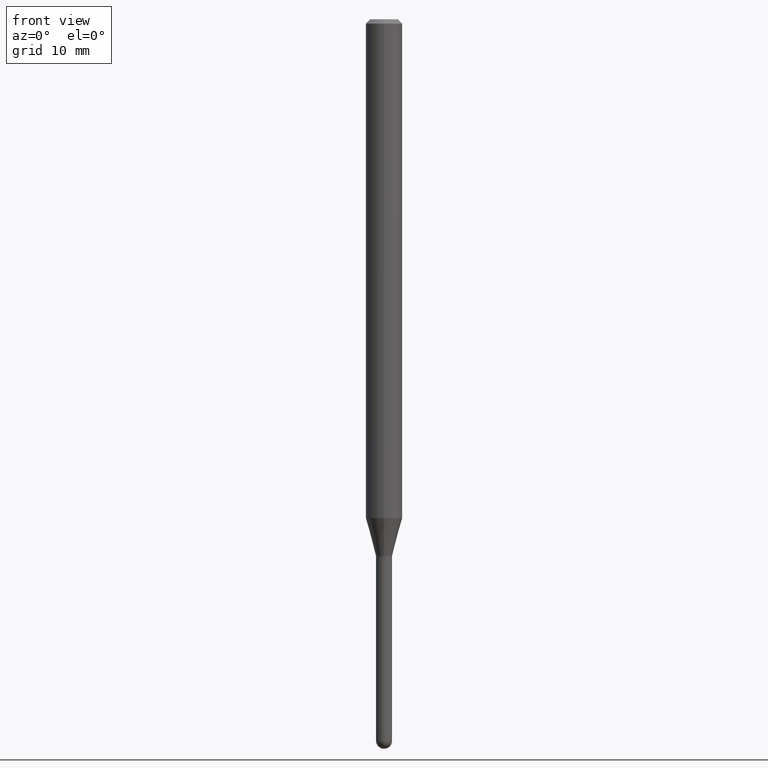
[diagram: clean part render]
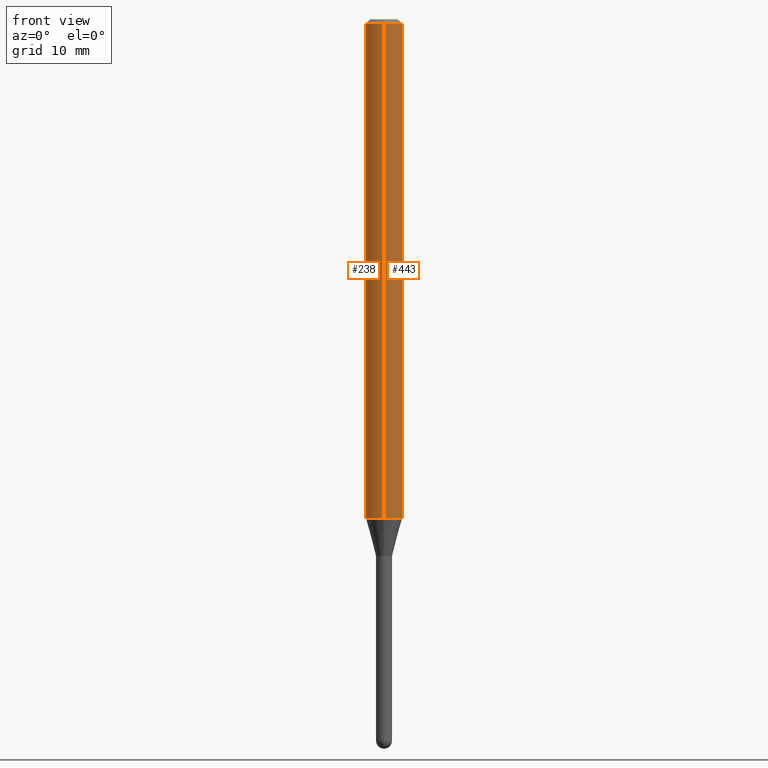
[diagram: same view with one multi-face feature highlighted, each face labeled with its STEP entity id]
A machine part, front view. The highlighted faces form ONE feature: a constant-radius fillet chain: 2 tangent blend faces with common blend radius 1.5875 mm. The faces share edges in the B-rep.
Their STEP definitions:
[1] entity #443 (Cylinder):
#8 = CARTESIAN_POINT ( 'NONE',  ( 4.440892098500625669E-16, 0.06250000000000000000, -2.182180900502340932E-16 ) ) ;
#22 = EDGE_CURVE ( 'NONE', #380, #76, #299, .T. ) ;
#23 = DIRECTION ( 'NONE',  ( -6.982962677686265922E-15, -1.000000000000000000, 3.491489440803745492E-15 ) ) ;
#41 = DIRECTION ( 'NONE',  ( -2.445463148616288200E-29, 3.491489440803745492E-15, 1.000000000000000000 ) ) ;
#50 = VERTEX_POINT ( 'NONE', #301 ) ;
#58 = ORIENTED_EDGE ( 'NONE', *, *, #197, .T. ) ;
#59 = DIRECTION ( 'NONE',  ( -2.445463148616288200E-29, 3.491489440803745492E-15, 1.000000000000000000 ) ) ;
#76 = VERTEX_POINT ( 'NONE', #191 ) ;
#90 = CARTESIAN_POINT ( 'NONE',  ( -4.364351673553912750E-16, -0.06250000000000005551, -0.01499999999999984852 ) ) ;
#96 = CARTESIAN_POINT ( 'NONE',  ( 0.000000000000000000, 0.000000000000000000, 0.000000000000000000 ) ) ;
#109 = ORIENTED_EDGE ( 'NONE', *, *, #259, .T. ) ;
#119 = EDGE_LOOP ( 'NONE', ( #109, #58, #337, #261 ) ) ;
#121 = DIRECTION ( 'NONE',  ( -2.445463148616287919E-29, 3.491489440803745492E-15, 1.000000000000000000 ) ) ;
#124 = AXIS2_PLACEMENT_3D ( 'NONE', #96, #59, #23 ) ;
#137 = AXIS2_PLACEMENT_3D ( 'NONE', #233, #263, #391 ) ;
#161 = DIRECTION ( 'NONE',  ( -2.445463148616287919E-29, 3.491489440803745492E-15, 1.000000000000000000 ) ) ;
#189 = CARTESIAN_POINT ( 'NONE',  ( -4.364351673553500570E-16, -0.06250000000000599520, -1.709378221735093017 ) ) ;
#191 = CARTESIAN_POINT ( 'NONE',  ( 4.440892098501046230E-16, 0.06249999999999995143, -0.01500000000000028394 ) ) ;
#197 = EDGE_CURVE ( 'NONE', #50, #76, #359, .T. ) ;
#207 = CARTESIAN_POINT ( 'NONE',  ( -4.364351673553916201E-16, -0.06250000000000000000, 2.182180900502340932E-16 ) ) ;
#217 = CYLINDRICAL_SURFACE ( 'NONE', #124, 0.06250000000000000000 ) ;
#233 = CARTESIAN_POINT ( 'NONE',  ( 3.668194722924448467E-31, -5.237234161205640695E-17, -0.01500000000000006710 ) ) ;
#246 = CARTESIAN_POINT ( 'NONE',  ( 4.180221448300412991E-29, -5.968276011527961205E-15, -1.709378221735093462 ) ) ;
#248 = EDGE_CURVE ( 'NONE', #482, #380, #441, .T. ) ;
#259 = EDGE_CURVE ( 'NONE', #482, #50, #404, .T. ) ;
#261 = ORIENTED_EDGE ( 'NONE', *, *, #248, .F. ) ;
#263 = DIRECTION ( 'NONE',  ( -2.445463148616288200E-29, 3.491489440803745492E-15, 1.000000000000000000 ) ) ;
#297 = FACE_OUTER_BOUND ( 'NONE', #119, .T. ) ;
#299 = CIRCLE ( 'NONE', #137, 0.06250000000000000000 ) ;
#301 = CARTESIAN_POINT ( 'NONE',  ( 4.440892098501041300E-16, 0.06249999999999401173, -1.709378221735093684 ) ) ;
#305 = AXIS2_PLACEMENT_3D ( 'NONE', #246, #41, #361 ) ;
#337 = ORIENTED_EDGE ( 'NONE', *, *, #22, .F. ) ;
#351 = VECTOR ( 'NONE', #161, 39.37007874015748143 ) ;
#359 = LINE ( 'NONE', #8, #351 ) ;
#361 = DIRECTION ( 'NONE',  ( -6.982962677686265922E-15, -1.000000000000000000, 4.370956789862821150E-15 ) ) ;
#380 = VERTEX_POINT ( 'NONE', #90 ) ;
#391 = DIRECTION ( 'NONE',  ( -6.982962677686265922E-15, -1.000000000000000000, 3.483106191921935554E-15 ) ) ;
#404 = CIRCLE ( 'NONE', #305, 0.06250000000000000000 ) ;
#441 = LINE ( 'NONE', #207, #477 ) ;
#443 = ADVANCED_FACE ( 'NONE', ( #297 ), #217, .T. ) ;
#477 = VECTOR ( 'NONE', #121, 39.37007874015748143 ) ;
#482 = VERTEX_POINT ( 'NONE', #189 ) ;
[2] entity #238 (Cylinder):
#8 = CARTESIAN_POINT ( 'NONE',  ( 4.440892098500625669E-16, 0.06250000000000000000, -2.182180900502340932E-16 ) ) ;
#15 = ORIENTED_EDGE ( 'NONE', *, *, #248, .T. ) ;
#35 = FACE_OUTER_BOUND ( 'NONE', #86, .T. ) ;
#49 = DIRECTION ( 'NONE',  ( -6.982962677686265922E-15, -1.000000000000000000, 4.370956789862821150E-15 ) ) ;
#50 = VERTEX_POINT ( 'NONE', #301 ) ;
#53 = CIRCLE ( 'NONE', #461, 0.06250000000000000000 ) ;
#76 = VERTEX_POINT ( 'NONE', #191 ) ;
#78 = ORIENTED_EDGE ( 'NONE', *, *, #197, .F. ) ;
#86 = EDGE_LOOP ( 'NONE', ( #78, #377, #15, #88 ) ) ;
#88 = ORIENTED_EDGE ( 'NONE', *, *, #436, .F. ) ;
#90 = CARTESIAN_POINT ( 'NONE',  ( -4.364351673553912750E-16, -0.06250000000000005551, -0.01499999999999984852 ) ) ;
#102 = AXIS2_PLACEMENT_3D ( 'NONE', #278, #366, #484 ) ;
#118 = CYLINDRICAL_SURFACE ( 'NONE', #102, 0.06250000000000000000 ) ;
#121 = DIRECTION ( 'NONE',  ( -2.445463148616287919E-29, 3.491489440803745492E-15, 1.000000000000000000 ) ) ;
#133 = CARTESIAN_POINT ( 'NONE',  ( 3.668194722924448467E-31, -5.237234161205640695E-17, -0.01500000000000006710 ) ) ;
#140 = DIRECTION ( 'NONE',  ( -2.445463148616288200E-29, 3.491489440803745492E-15, 1.000000000000000000 ) ) ;
#155 = CIRCLE ( 'NONE', #271, 0.06250000000000000000 ) ;
#161 = DIRECTION ( 'NONE',  ( -2.445463148616287919E-29, 3.491489440803745492E-15, 1.000000000000000000 ) ) ;
#189 = CARTESIAN_POINT ( 'NONE',  ( -4.364351673553500570E-16, -0.06250000000000599520, -1.709378221735093017 ) ) ;
#191 = CARTESIAN_POINT ( 'NONE',  ( 4.440892098501046230E-16, 0.06249999999999995143, -0.01500000000000028394 ) ) ;
#197 = EDGE_CURVE ( 'NONE', #50, #76, #359, .T. ) ;
#207 = CARTESIAN_POINT ( 'NONE',  ( -4.364351673553916201E-16, -0.06250000000000000000, 2.182180900502340932E-16 ) ) ;
#238 = ADVANCED_FACE ( 'NONE', ( #35 ), #118, .T. ) ;
#248 = EDGE_CURVE ( 'NONE', #482, #380, #441, .T. ) ;
#271 = AXIS2_PLACEMENT_3D ( 'NONE', #413, #140, #49 ) ;
#278 = CARTESIAN_POINT ( 'NONE',  ( 0.000000000000000000, 0.000000000000000000, 0.000000000000000000 ) ) ;
#301 = CARTESIAN_POINT ( 'NONE',  ( 4.440892098501041300E-16, 0.06249999999999401173, -1.709378221735093684 ) ) ;
#351 = VECTOR ( 'NONE', #161, 39.37007874015748143 ) ;
#359 = LINE ( 'NONE', #8, #351 ) ;
#366 = DIRECTION ( 'NONE',  ( -2.445463148616288200E-29, 3.491489440803745492E-15, 1.000000000000000000 ) ) ;
#371 = EDGE_CURVE ( 'NONE', #50, #482, #155, .T. ) ;
#377 = ORIENTED_EDGE ( 'NONE', *, *, #371, .T. ) ;
#380 = VERTEX_POINT ( 'NONE', #90 ) ;
#383 = DIRECTION ( 'NONE',  ( -6.982962677686265922E-15, -1.000000000000000000, 3.483106191921935554E-15 ) ) ;
#413 = CARTESIAN_POINT ( 'NONE',  ( 4.180221448300412991E-29, -5.968276011527961205E-15, -1.709378221735093462 ) ) ;
#436 = EDGE_CURVE ( 'NONE', #76, #380, #53, .T. ) ;
#441 = LINE ( 'NONE', #207, #477 ) ;
#456 = DIRECTION ( 'NONE',  ( -2.445463148616288200E-29, 3.491489440803745492E-15, 1.000000000000000000 ) ) ;
#461 = AXIS2_PLACEMENT_3D ( 'NONE', #133, #456, #383 ) ;
#477 = VECTOR ( 'NONE', #121, 39.37007874015748143 ) ;
#482 = VERTEX_POINT ( 'NONE', #189 ) ;
#484 = DIRECTION ( 'NONE',  ( -6.982962677686265922E-15, -1.000000000000000000, 3.491489440803745492E-15 ) ) ;